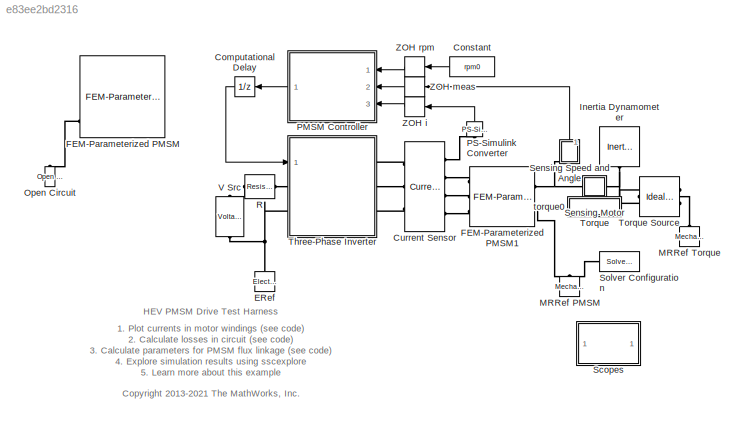
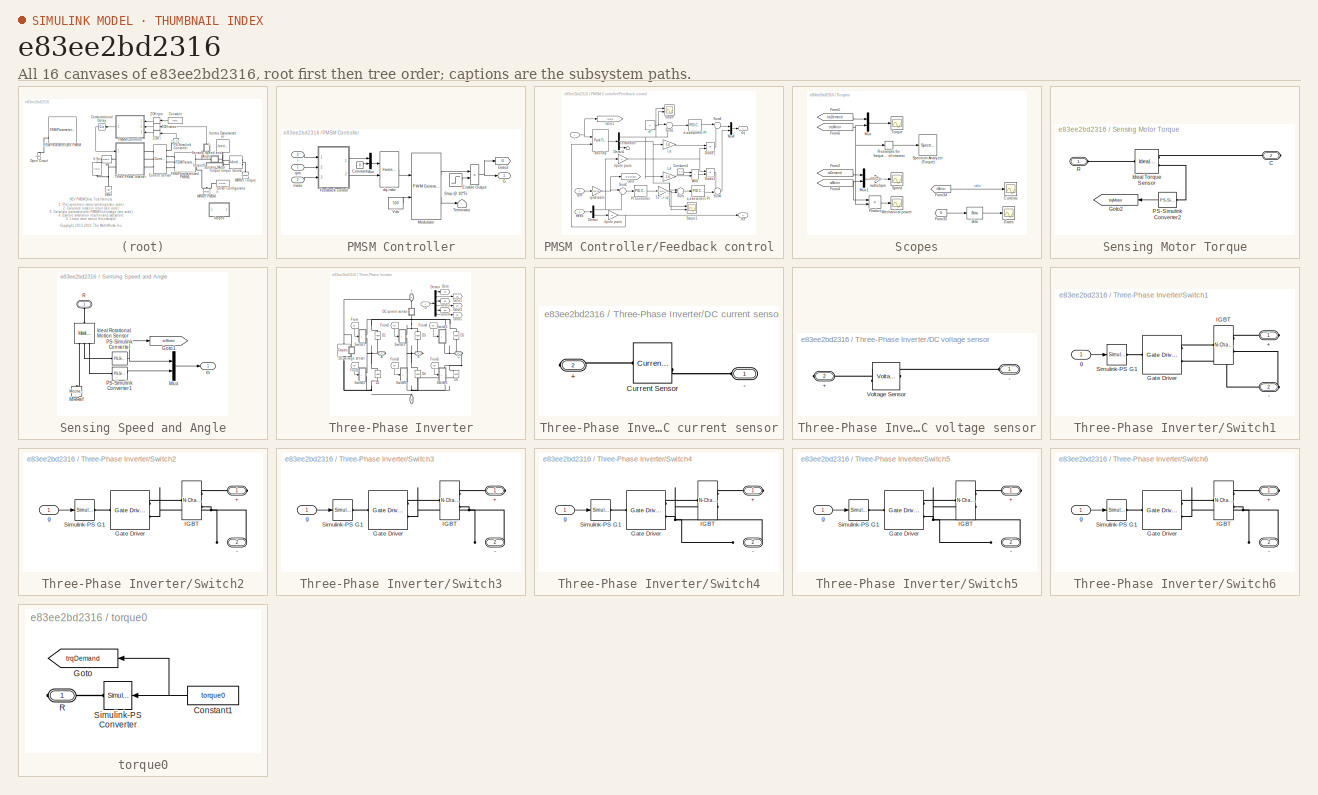
[diagram: thumbnail index - all 16 canvases of the model, root first then tree order]
MODEL slx_e83ee2bd2316
KIND model
CONFIG AbsTol = 1e-3
CONFIG EnableMultiTasking = on
CONFIG FixedStep = auto
CONFIG InitFcn = % Set simulation time for 5 full AC cycles\n% tsim = 5*60/rpm0/N;\ntsim = 4*60/rpm0/N;\n\n
CONFIG MaxStep = 1e-6
CONFIG MinStep = auto
CONFIG PostLoadFcn = % Create the PMSM data\nee_motor_pmsm_drive_test_params\n\n% Test harness test point\nrpm0 = 1400;\ntorque0 = 200;\n\n\n\n\n
CONFIG PreLoadFcn = tsim = 0.5;
CONFIG RelTol = 1e-4
CONFIG SampleTimeConstraint = Unconstrained
CONFIG SolverName = ode23t
CONFIG StartTime = 0.0
CONFIG StopFcn = ee_addSimlogTimeStamp(bdroot)
CONFIG StopTime = 1
BLOCK [UnitDelay] Computational Delay
  HasFrameUpgradeWarning = on
  NameLocation = top
  SampleTime = Ts
BLOCK [Constant] Constant
  NameLocation = top
  Value = rpm0
BLOCK [Reference] Current Sensor  REF=ee_lib/Sensors &
Transducers/Current Sensor
(Three-Phase)
  Ports = [0, 0, 0, 0, 0, 3, 4]
  SourceBlock = ee_lib/Sensors &\nTransducers/Current Sensor\n(Three-Phase)
  SourceProductBaseCode = PS
  SourceType = Current Sensor\n(Three-Phase)
BLOCK [Reference] ERef  REF=fl_lib/Electrical/Electrical Elements/Electrical Reference
  NameLocation = right
  Ports = [0, 0, 0, 0, 0, 1]
  SourceBlock = fl_lib/Electrical/Electrical Elements/Electrical Reference
  SourceProductBaseCode = SS
  SourceType = Electrical Reference
BLOCK [Reference] FEM-Parameterized PMSM  REF=ee_lib/Electromechanical/Permanent Magnet/FEM-Parameterized
PMSM
  Commented = on
  Ports = [0, 0, 0, 0, 0, 4, 2]
  SourceBlock = ee_lib/Electromechanical/Permanent Magnet/FEM-Parameterized\nPMSM
  SourceProductBaseCode = PS
  SourceType = FEM-Parameterized\nPMSM
BLOCK [Reference] FEM-Parameterized PMSM1  REF=ee_lib/Electromechanical/Permanent Magnet/FEM-Parameterized
PMSM
  Ports = [0, 0, 0, 0, 0, 3, 2]
  SourceBlock = ee_lib/Electromechanical/Permanent Magnet/FEM-Parameterized\nPMSM
  SourceProductBaseCode = PS
  SourceType = FEM-Parameterized\nPMSM
BLOCK [Reference] Inertia Dynamometer  REF=fl_lib/Mechanical/Rotational Elements/Inertia
  NameLocation = right
  Ports = [0, 0, 0, 0, 0, 1]
  SourceBlock = fl_lib/Mechanical/Rotational Elements/Inertia
  SourceProductBaseCode = SS
  SourceType = Inertia
BLOCK [Reference] MRRef PMSM  REF=fl_lib/Mechanical/Rotational Elements/Mechanical
Rotational Reference
  NameLocation = left
  Ports = [0, 0, 0, 0, 0, 1]
  SourceBlock = fl_lib/Mechanical/Rotational Elements/Mechanical\nRotational Reference
  SourceProductBaseCode = SS
  SourceType = Mechanical\nRotational Reference
BLOCK [Reference] MRRef Torque  REF=fl_lib/Mechanical/Rotational Elements/Mechanical
Rotational Reference
  NameLocation = right
  Ports = [0, 0, 0, 0, 0, 1]
  SourceBlock = fl_lib/Mechanical/Rotational Elements/Mechanical\nRotational Reference
  SourceProductBaseCode = SS
  SourceType = Mechanical\nRotational Reference
BLOCK [Reference] Open Circuit  REF=fl_lib/Electrical/Electrical Elements/Open Circuit
  Commented = on
  NameLocation = right
  Ports = [0, 0, 0, 0, 0, 1]
  SourceBlock = fl_lib/Electrical/Electrical Elements/Open Circuit
  SourceProductBaseCode = SS
  SourceType = Open Circuit
BLOCK [SubSystem] PMSM Controller
  NameLocation = top
  Ports = [3, 1]
  RequestExecContextInheritance = off
BLOCK [Constant] PMSM Controller/Constant
  SampleTime = -1
  Value = 0
BLOCK [Product] PMSM Controller/Enable Output
  Ports = [2, 1]
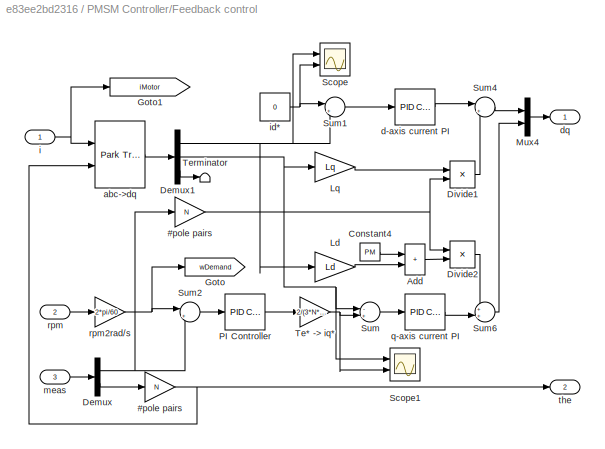
BLOCK [SubSystem] PMSM Controller/Feedback control
  Ports = [3, 2]
  RequestExecContextInheritance = off
BLOCK [Gain] PMSM Controller/Feedback control/ #pole pairs 
  Gain = N
BLOCK [Gain] PMSM Controller/Feedback control/#pole pairs
  Gain = N
BLOCK [Sum] PMSM Controller/Feedback control/Add
  IconShape = rectangular
  Ports = [2, 1]
BLOCK [Constant] PMSM Controller/Feedback control/Constant4
  SampleTime = Tsc
  Value = PM
BLOCK [Demux] PMSM Controller/Feedback control/Demux
  Outputs = 2
  Ports = [1, 2]
BLOCK [Demux] PMSM Controller/Feedback control/Demux1
  Outputs = 3
  Ports = [1, 3]
BLOCK [Product] PMSM Controller/Feedback control/Divide1
  Inputs = **
  Ports = [2, 1]
BLOCK [Product] PMSM Controller/Feedback control/Divide2
  Inputs = **
  Ports = [2, 1]
BLOCK [Goto] PMSM Controller/Feedback control/Goto
  GotoTag = wDemand
  NameLocation = top
  TagVisibility = global
BLOCK [Goto] PMSM Controller/Feedback control/Goto1
  GotoTag = iMotor
  NameLocation = top
  TagVisibility = global
BLOCK [Gain] PMSM Controller/Feedback control/Ld
  Gain = Ld
BLOCK [Gain] PMSM Controller/Feedback control/Lq
  Gain = Lq
BLOCK [Mux] PMSM Controller/Feedback control/Mux4
  DisplayOption = bar
  Inputs = 2
  Ports = [2, 1]
BLOCK [Reference] PMSM Controller/Feedback control/PI Controller  REF=slpidlib/PID Controller
  Ports = [1, 1]
  SourceBlock = slpidlib/PID Controller
  SourceProductBaseCode = SL
  SourceType = PID 1dof
BLOCK [Scope] PMSM Controller/Feedback control/Scope
  Floating = off
  NumInputPorts = 2
  Ports = [2]
  ScopeSpecificationString = Simulink.scopes.TimeScopeBlockCfg('CurrentConfiguration', extmgr.ConfigurationSet(extmgr.Configuration('Core','General UI',true),extmgr.Configuration('Core','Source UI',true),extmgr.Configuration('Sources','WiredSimulink',true,'DataLoggingVariableName','ScopeData1'),extmgr.Configuration('Visuals','Time Domain',true,'SerializedDisplays',{struct('MinYLimReal','-178.62259','MaxYLimReal','517.60003','...<+1526ch>
BLOCK [Scope] PMSM Controller/Feedback control/Scope1
  Floating = off
  NumInputPorts = 2
  Ports = [2]
  ScopeSpecificationString = Simulink.scopes.TimeScopeBlockCfg('CurrentConfiguration', extmgr.ConfigurationSet(extmgr.Configuration('Core','General UI',true),extmgr.Configuration('Core','Source UI',true),extmgr.Configuration('Sources','WiredSimulink',true,'DataLoggingVariableName','ScopeData2'),extmgr.Configuration('Visuals','Time Domain',true,'SerializedDisplays',{struct('MinYLimReal','-698.6642','MaxYLimReal','98.2496','YLa...<+1524ch>
BLOCK [Sum] PMSM Controller/Feedback control/Sum
  Inputs = -+|
  Ports = [2, 1]
BLOCK [Sum] PMSM Controller/Feedback control/Sum1
  Inputs = |+-
  Ports = [2, 1]
BLOCK [Sum] PMSM Controller/Feedback control/Sum2
  Inputs = |+-
  Ports = [2, 1]
BLOCK [Sum] PMSM Controller/Feedback control/Sum4
  Inputs = |+-
  Ports = [2, 1]
BLOCK [Sum] PMSM Controller/Feedback control/Sum6
  Inputs = ++|
  Ports = [2, 1]
BLOCK [Gain] PMSM Controller/Feedback control/Te* -> iq*
  Gain = 2/(3*N*PM)
BLOCK [Terminator] PMSM Controller/Feedback control/Terminator
BLOCK [Reference] PMSM Controller/Feedback control/abc->dq  REF=eeTransforms/Park Transform
  Ports = [2, 1]
  SourceBlock = eeTransforms/Park Transform
  SourceProductBaseCode = PS
  SourceType = Park Transform
BLOCK [Reference] PMSM Controller/Feedback control/d-axis current PI  REF=slpidlib/PID Controller
  Ports = [1, 1]
  SourceBlock = slpidlib/PID Controller
  SourceProductBaseCode = SL
  SourceType = PID 1dof
BLOCK [Outport] PMSM Controller/Feedback control/dq
  VectorParamsAs1DForOutWhenUnconnected = off
BLOCK [Inport] PMSM Controller/Feedback control/i
BLOCK [Constant] PMSM Controller/Feedback control/id*
  SampleTime = Tsc
  Value = 0
BLOCK [Inport] PMSM Controller/Feedback control/meas
  Port = 3
BLOCK [Reference] PMSM Controller/Feedback control/q-axis current PI  REF=slpidlib/PID Controller
  Ports = [1, 1]
  SourceBlock = slpidlib/PID Controller
  SourceProductBaseCode = SL
  SourceType = PID 1dof
BLOCK [Inport] PMSM Controller/Feedback control/rpm
  Port = 2
BLOCK [Gain] PMSM Controller/Feedback control/rpm2rad//s
  Gain = 2*pi/60
BLOCK [Outport] PMSM Controller/Feedback control/the
  Port = 2
  VectorParamsAs1DForOutWhenUnconnected = off
BLOCK [Outport] PMSM Controller/G
  VectorParamsAs1DForOutWhenUnconnected = off
BLOCK [Goto] PMSM Controller/Goto3
  GotoTag = G
  NameLocation = top
  TagVisibility = global
BLOCK [Reference] PMSM Controller/Modulator  REF=eePwmGeneratorTwoLevel/PWM Generator
(Three-phase, Two-level)
  Ports = [2, 2]
  SourceBlock = eePwmGeneratorTwoLevel/PWM Generator\n(Three-phase, Two-level)
  SourceProductBaseCode = PS
  SourceType = PWM Generator (three-phase, two-level)
BLOCK [Mux] PMSM Controller/Mux
  DisplayOption = bar
  Inputs = 2
  Ports = [2, 1]
BLOCK [Step] PMSM Controller/Step @ 10*Ts
  SampleTime = Ts
  Time = 10*Ts
BLOCK [Terminator] PMSM Controller/Terminator
BLOCK [Constant] PMSM Controller/Vdc
  SampleTime = Tsc
  Value = 500
BLOCK [Reference] PMSM Controller/dq->abc  REF=eeTransforms/Inverse
Park Transform
  Ports = [2, 1]
  SourceBlock = eeTransforms/Inverse\nPark Transform
  SourceProductBaseCode = PS
  SourceType = Inverse Park Transform
BLOCK [Inport] PMSM Controller/i
  Port = 3
BLOCK [Inport] PMSM Controller/meas
  Port = 2
BLOCK [Inport] PMSM Controller/rpm
BLOCK [Reference] PS-Simulink Converter  REF=nesl_utility/PS-Simulink
Converter
  NameLocation = right
  Ports = [0, 1, 0, 0, 0, 1]
  SourceBlock = nesl_utility/PS-Simulink\nConverter
  SourceProductBaseCode = PW,SS
  SourceType = PS-Simulink\nConverter
BLOCK [Reference] R  REF=fl_lib/Electrical/Electrical Elements/Resistor
  Ports = [0, 0, 0, 0, 0, 1, 1]
  SourceBlock = fl_lib/Electrical/Electrical Elements/Resistor
  SourceProductBaseCode = SS
  SourceType = Resistor
BLOCK [SubSystem] Scopes
  Ports = []
  RequestExecContextInheritance = off
BLOCK [Bias] Scopes/Bias
  Bias = [0 0 2 2 4 4]
  SaturateOnIntegerOverflow = off
BLOCK [Scope] Scopes/Currents
  Floating = off
  NumInputPorts = 1
  Ports = [1]
  ScopeSpecificationString = Simulink.scopes.TimeScopeBlockCfg('CurrentConfiguration', extmgr.ConfigurationSet(extmgr.Configuration('Core','General UI',true),extmgr.Configuration('Core','Source UI',true),extmgr.Configuration('Sources','WiredSimulink',true,'DataLoggingVariableName','ScopeData5','DataLoggingSaveFormat','StructureWithTime','DataLoggingMaxPoints','50000','DataLoggingDecimation','10','DataLoggingLimitDataPoints',t...<+1786ch>
BLOCK [From] Scopes/From2
  GotoTag = wDemand
  TagVisibility = global
BLOCK [From] Scopes/From34
  GotoTag = iMotor
  TagVisibility = global
BLOCK [From] Scopes/From35
  GotoTag = G
  TagVisibility = global
BLOCK [From] Scopes/From4
  GotoTag = wMotor
  TagVisibility = global
BLOCK [From] Scopes/From5
  GotoTag = trqDemand
  TagVisibility = global
BLOCK [From] Scopes/From6
  GotoTag = trqMotor
  TagVisibility = global
BLOCK [Scope] Scopes/Gates
  Floating = off
  NumInputPorts = 1
  Ports = [1]
  ScopeSpecificationString = Simulink.scopes.TimeScopeBlockCfg('CurrentConfiguration', extmgr.ConfigurationSet(extmgr.Configuration('Core','General UI',true),extmgr.Configuration('Core','Source UI',true),extmgr.Configuration('Sources','WiredSimulink',true,'DataLoggingVariableName','ScopeData4','DataLoggingSaveFormat','StructureWithTime','DataLoggingMaxPoints','50000','DataLoggingDecimation','10','DataLoggingLimitDataPoints',t...<+1809ch>
BLOCK [Scope] Scopes/Mechanical power
  Floating = off
  NumInputPorts = 1
  Ports = [1]
  ScopeSpecificationString = Simulink.scopes.TimeScopeBlockCfg('CurrentConfiguration', extmgr.ConfigurationSet(extmgr.Configuration('Core','General UI',true),extmgr.Configuration('Core','Source UI',true),extmgr.Configuration('Sources','WiredSimulink',true,'DataLoggingVariableName','ScopeData1','DataLoggingSaveFormat','StructureWithTime','DataLoggingMaxPoints','500000','DataLoggingDecimation','10','DataLoggingLimitDataPoints',...<+1754ch>
BLOCK [Mux] Scopes/Mux
  DisplayOption = bar
  Inputs = 2
  Ports = [2, 1]
BLOCK [Mux] Scopes/Mux1
  DisplayOption = bar
  Inputs = 2
  Ports = [2, 1]
BLOCK [Product] Scopes/Product
  Ports = [2, 1]
BLOCK [ZeroOrderHold] Scopes/Resample for frequency range of interest
  SampleTime = 2.5e-5
BLOCK [SpectrumAnalyzer] Scopes/Spectrum Analyzer (Torque)
  Ports = [1]
  ScopeSpecificationString = spbscopes.SpectrumAnalyzerBlockCfg('CurrentConfiguration', extmgr.ConfigurationSet(extmgr.Configuration('Core','General UI',true),extmgr.Configuration('Core','Source UI',true),extmgr.Configuration('Sources','WiredSimulink',true),extmgr.Configuration('Sources','Simulink',false),extmgr.Configuration('Sources','SimulinkEvent',false),extmgr.Configuration('Sources','Streaming',false),extmgr.Configurati...<+3148ch>
  Tag = PublishScope
BLOCK [Scope] Scopes/Speed
  Floating = off
  NumInputPorts = 1
  Ports = [1]
  ScopeSpecificationString = Simulink.scopes.TimeScopeBlockCfg('CurrentConfiguration', extmgr.ConfigurationSet(extmgr.Configuration('Core','General UI',true),extmgr.Configuration('Core','Source UI',true),extmgr.Configuration('Sources','WiredSimulink',true,'DataLoggingVariableName','ScopeData6','DataLoggingSaveFormat','StructureWithTime','DataLoggingMaxPoints','500000','DataLoggingDecimation','10','DataLoggingLimitDataPoints',...<+1873ch>
BLOCK [Scope] Scopes/Torque
  Floating = off
  NumInputPorts = 1
  Ports = [1]
  ScopeSpecificationString = Simulink.scopes.TimeScopeBlockCfg('CurrentConfiguration', extmgr.ConfigurationSet(extmgr.Configuration('Core','General UI',true),extmgr.Configuration('Core','Source UI',true),extmgr.Configuration('Sources','WiredSimulink',true,'DataLoggingVariableName','ScopeData7','DataLoggingSaveFormat','StructureWithTime','DataLoggingMaxPoints','500000','DataLoggingDecimation','10','DataLoggingLimitDataPoints',...<+1772ch>
BLOCK [Gain] Scopes/rad//s2rpm
  Gain = 60/(2*pi)
BLOCK [SubSystem] Sensing Motor Torque
  Ports = [0, 0, 0, 0, 0, 1, 1]
  RequestExecContextInheritance = off
BLOCK [PMIOPort] Sensing Motor Torque/C
  Port = 2
  Side = Right
BLOCK [Goto] Sensing Motor Torque/Goto2
  GotoTag = trqMotor
  TagVisibility = global
BLOCK [Reference] Sensing Motor Torque/Ideal Torque Sensor  REF=fl_lib/Mechanical/Mechanical Sensors/Ideal Torque Sensor
  Ports = [0, 0, 0, 0, 0, 1, 2]
  SourceBlock = fl_lib/Mechanical/Mechanical Sensors/Ideal Torque Sensor
  SourceProductBaseCode = SS
  SourceType = Ideal Torque Sensor
BLOCK [Reference] Sensing Motor Torque/PS-Simulink Converter2  REF=nesl_utility/PS-Simulink
Converter
  NameLocation = top
  Ports = [0, 1, 0, 0, 0, 1]
  SourceBlock = nesl_utility/PS-Simulink\nConverter
  SourceProductBaseCode = PW,SS
  SourceType = PS-Simulink\nConverter
BLOCK [PMIOPort] Sensing Motor Torque/R
  Side = Left
BLOCK [SubSystem] Sensing Speed and Angle
  NameLocation = right
  Ports = [0, 1, 0, 0, 0, 1]
  RequestExecContextInheritance = off
BLOCK [Goto] Sensing Speed and Angle/Goto1
  GotoTag = wMotor
  NameLocation = top
  TagVisibility = global
BLOCK [Reference] Sensing Speed and Angle/Ideal Rotational Motion Sensor  REF=fl_lib/Mechanical/Mechanical Sensors/Ideal Rotational
Motion Sensor
  NameLocation = right
  Ports = [0, 0, 0, 0, 0, 1, 3]
  SourceBlock = fl_lib/Mechanical/Mechanical Sensors/Ideal Rotational\nMotion Sensor
  SourceProductBaseCode = SS
  SourceType = Ideal Rotational\nMotion Sensor
BLOCK [Reference] Sensing Speed and Angle/MRRef  REF=fl_lib/Mechanical/Rotational Elements/Mechanical
Rotational Reference
  NameLocation = right
  Ports = [0, 0, 0, 0, 0, 1]
  SourceBlock = fl_lib/Mechanical/Rotational Elements/Mechanical\nRotational Reference
  SourceProductBaseCode = SS
  SourceType = Mechanical\nRotational Reference
BLOCK [Mux] Sensing Speed and Angle/Mux
  DisplayOption = bar
  Inputs = 2
  Ports = [2, 1]
BLOCK [Reference] Sensing Speed and Angle/PS-Simulink Converter  REF=nesl_utility/PS-Simulink
Converter
  Ports = [0, 1, 0, 0, 0, 1]
  SourceBlock = nesl_utility/PS-Simulink\nConverter
  SourceProductBaseCode = PW,SS
  SourceType = PS-Simulink\nConverter
BLOCK [Reference] Sensing Speed and Angle/PS-Simulink Converter1  REF=nesl_utility/PS-Simulink
Converter
  Ports = [0, 1, 0, 0, 0, 1]
  SourceBlock = nesl_utility/PS-Simulink\nConverter
  SourceProductBaseCode = PW,SS
  SourceType = PS-Simulink\nConverter
BLOCK [PMIOPort] Sensing Speed and Angle/R
  NameLocation = right
  Side = Left
BLOCK [Outport] Sensing Speed and Angle/m
  VectorParamsAs1DForOutWhenUnconnected = off
BLOCK [Reference] Solver Configuration  REF=nesl_utility/Solver
Configuration
  Ports = [0, 0, 0, 0, 0, 0, 1]
  SourceBlock = nesl_utility/Solver\nConfiguration
  SourceProductBaseCode = PW,SS
  SourceType = Solver\nConfiguration
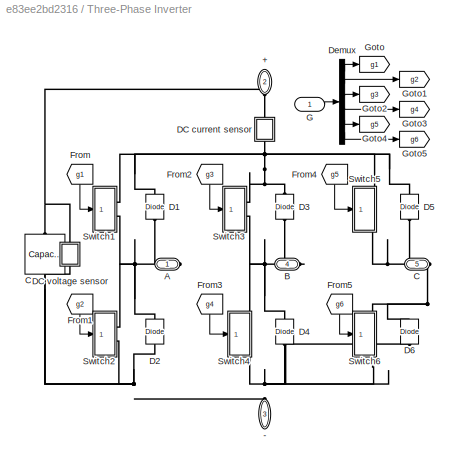
BLOCK [SubSystem] Three-Phase Inverter
  Ports = [1, 0, 0, 0, 0, 2, 3]
  RequestExecContextInheritance = off
  Tag = PublishSubsystem
BLOCK [Reference] Three-Phase Inverter/ C  REF=ee_lib/Passive/Capacitor
  NameLocation = left
  Ports = [0, 0, 0, 0, 0, 1, 1]
  SourceBlock = ee_lib/Passive/Capacitor
  SourceProductBaseCode = PS
  SourceType = Capacitor
BLOCK [PMIOPort] Three-Phase Inverter/+
  NameLocation = left
  Port = 2
  Side = Left
  Tag = PMCPort
BLOCK [PMIOPort] Three-Phase Inverter/-
  NameLocation = right
  Port = 3
  Side = Left
  Tag = PMCPort
BLOCK [PMIOPort] Three-Phase Inverter/A
  Side = Right
  Tag = PMCPort
BLOCK [PMIOPort] Three-Phase Inverter/B
  Port = 4
  Side = Right
  Tag = PMCPort
BLOCK [PMIOPort] Three-Phase Inverter/C
  Port = 5
  Side = Right
  Tag = PMCPort
BLOCK [Reference] Three-Phase Inverter/D1  REF=ee_lib/Semiconductors &
Converters/Diode
  NameLocation = right
  Ports = [0, 0, 0, 0, 0, 1, 1]
  SourceBlock = ee_lib/Semiconductors &\nConverters/Diode
  SourceProductBaseCode = PS
  SourceType = Diode
BLOCK [Reference] Three-Phase Inverter/D2  REF=ee_lib/Semiconductors &
Converters/Diode
  NameLocation = right
  Ports = [0, 0, 0, 0, 0, 1, 1]
  SourceBlock = ee_lib/Semiconductors &\nConverters/Diode
  SourceProductBaseCode = PS
  SourceType = Diode
BLOCK [Reference] Three-Phase Inverter/D3  REF=ee_lib/Semiconductors &
Converters/Diode
  NameLocation = right
  Ports = [0, 0, 0, 0, 0, 1, 1]
  SourceBlock = ee_lib/Semiconductors &\nConverters/Diode
  SourceProductBaseCode = PS
  SourceType = Diode
BLOCK [Reference] Three-Phase Inverter/D4  REF=ee_lib/Semiconductors &
Converters/Diode
  NameLocation = right
  Ports = [0, 0, 0, 0, 0, 1, 1]
  SourceBlock = ee_lib/Semiconductors &\nConverters/Diode
  SourceProductBaseCode = PS
  SourceType = Diode
BLOCK [Reference] Three-Phase Inverter/D5  REF=ee_lib/Semiconductors &
Converters/Diode
  NameLocation = right
  Ports = [0, 0, 0, 0, 0, 1, 1]
  SourceBlock = ee_lib/Semiconductors &\nConverters/Diode
  SourceProductBaseCode = PS
  SourceType = Diode
BLOCK [Reference] Three-Phase Inverter/D6  REF=ee_lib/Semiconductors &
Converters/Diode
  NameLocation = right
  Ports = [0, 0, 0, 0, 0, 1, 1]
  SourceBlock = ee_lib/Semiconductors &\nConverters/Diode
  SourceProductBaseCode = PS
  SourceType = Diode
BLOCK [SubSystem] Three-Phase Inverter/DC current sensor
  NameLocation = left
  Ports = [0, 0, 0, 0, 0, 1, 1]
  RequestExecContextInheritance = off
BLOCK [PMIOPort] Three-Phase Inverter/DC current sensor/+
  Port = 2
  Side = Right
BLOCK [PMIOPort] Three-Phase Inverter/DC current sensor/-
  Side = Left
BLOCK [Reference] Three-Phase Inverter/DC current sensor/Current Sensor  REF=fl_lib/Electrical/Electrical Sensors/Current Sensor
  Ports = [0, 0, 0, 0, 0, 1, 2]
  SourceBlock = fl_lib/Electrical/Electrical Sensors/Current Sensor
  SourceProductBaseCode = SS
  SourceType = Current Sensor
BLOCK [SubSystem] Three-Phase Inverter/DC voltage sensor
  NameLocation = right
  Ports = [0, 0, 0, 0, 0, 1, 1]
  RequestExecContextInheritance = off
BLOCK [PMIOPort] Three-Phase Inverter/DC voltage sensor/+
  Port = 2
  Side = Right
BLOCK [PMIOPort] Three-Phase Inverter/DC voltage sensor/-
  Side = Left
BLOCK [Reference] Three-Phase Inverter/DC voltage sensor/Voltage Sensor  REF=fl_lib/Electrical/Electrical Sensors/Voltage Sensor
  Ports = [0, 0, 0, 0, 0, 1, 2]
  SourceBlock = fl_lib/Electrical/Electrical Sensors/Voltage Sensor
  SourceProductBaseCode = SS
  SourceType = Voltage Sensor
BLOCK [Demux] Three-Phase Inverter/Demux
  Outputs = 6
  Ports = [1, 6]
BLOCK [From] Three-Phase Inverter/From
  GotoTag = g1
  NameLocation = left
BLOCK [From] Three-Phase Inverter/From1
  GotoTag = g2
  NameLocation = left
BLOCK [From] Three-Phase Inverter/From2
  GotoTag = g3
  NameLocation = left
BLOCK [From] Three-Phase Inverter/From3
  GotoTag = g4
  NameLocation = left
BLOCK [From] Three-Phase Inverter/From4
  GotoTag = g5
  NameLocation = left
BLOCK [From] Three-Phase Inverter/From5
  GotoTag = g6
  NameLocation = left
BLOCK [Inport] Three-Phase Inverter/G
BLOCK [Goto] Three-Phase Inverter/Goto
  GotoTag = g1
BLOCK [Goto] Three-Phase Inverter/Goto1
  GotoTag = g2
BLOCK [Goto] Three-Phase Inverter/Goto2
  GotoTag = g3
BLOCK [Goto] Three-Phase Inverter/Goto3
  GotoTag = g4
BLOCK [Goto] Three-Phase Inverter/Goto4
  GotoTag = g5
BLOCK [Goto] Three-Phase Inverter/Goto5
  GotoTag = g6
BLOCK [SubSystem] Three-Phase Inverter/Switch1
  Ports = [1, 0, 0, 0, 0, 0, 2]
  RequestExecContextInheritance = off
BLOCK [PMIOPort] Three-Phase Inverter/Switch1/+
  Side = Right
BLOCK [PMIOPort] Three-Phase Inverter/Switch1/-
  Port = 2
  Side = Right
BLOCK [Reference] Three-Phase Inverter/Switch1/Gate Driver  REF=ee_lib/Semiconductors &
Converters/Gate Driver
  Ports = [0, 0, 0, 0, 0, 1, 2]
  SourceBlock = ee_lib/Semiconductors &\nConverters/Gate Driver
  SourceProductBaseCode = PS
  SourceType = Gate Driver
BLOCK [Reference] Three-Phase Inverter/Switch1/IGBT  REF=ee_lib/Semiconductors &
Converters/N-Channel IGBT
  Ports = [0, 0, 0, 0, 0, 1, 2]
  SourceBlock = ee_lib/Semiconductors &\nConverters/N-Channel IGBT
  SourceProductBaseCode = PS
  SourceType = N-Channel IGBT
BLOCK [Reference] Three-Phase Inverter/Switch1/Simulink-PS G1  REF=nesl_utility/Simulink-PS
Converter
  Ports = [1, 0, 0, 0, 0, 0, 1]
  SourceBlock = nesl_utility/Simulink-PS\nConverter
  SourceProductBaseCode = PW,SS
  SourceType = Simulink-PS\nConverter
BLOCK [Inport] Three-Phase Inverter/Switch1/g
BLOCK [SubSystem] Three-Phase Inverter/Switch2
  Ports = [1, 0, 0, 0, 0, 0, 2]
  RequestExecContextInheritance = off
BLOCK [PMIOPort] Three-Phase Inverter/Switch2/+
  Side = Right
BLOCK [PMIOPort] Three-Phase Inverter/Switch2/-
  Port = 2
  Side = Right
BLOCK [Reference] Three-Phase Inverter/Switch2/Gate Driver  REF=ee_lib/Semiconductors &
Converters/Gate Driver
  Ports = [0, 0, 0, 0, 0, 1, 2]
  SourceBlock = ee_lib/Semiconductors &\nConverters/Gate Driver
  SourceProductBaseCode = PS
  SourceType = Gate Driver
BLOCK [Reference] Three-Phase Inverter/Switch2/IGBT  REF=ee_lib/Semiconductors &
Converters/N-Channel IGBT
  Ports = [0, 0, 0, 0, 0, 1, 2]
  SourceBlock = ee_lib/Semiconductors &\nConverters/N-Channel IGBT
  SourceProductBaseCode = PS
  SourceType = N-Channel IGBT
BLOCK [Reference] Three-Phase Inverter/Switch2/Simulink-PS G1  REF=nesl_utility/Simulink-PS
Converter
  Ports = [1, 0, 0, 0, 0, 0, 1]
  SourceBlock = nesl_utility/Simulink-PS\nConverter
  SourceProductBaseCode = PW,SS
  SourceType = Simulink-PS\nConverter
BLOCK [Inport] Three-Phase Inverter/Switch2/g
BLOCK [SubSystem] Three-Phase Inverter/Switch3
  Ports = [1, 0, 0, 0, 0, 0, 2]
  RequestExecContextInheritance = off
BLOCK [PMIOPort] Three-Phase Inverter/Switch3/+
  Side = Right
BLOCK [PMIOPort] Three-Phase Inverter/Switch3/-
  Port = 2
  Side = Right
BLOCK [Reference] Three-Phase Inverter/Switch3/Gate Driver  REF=ee_lib/Semiconductors &
Converters/Gate Driver
  Ports = [0, 0, 0, 0, 0, 1, 2]
  SourceBlock = ee_lib/Semiconductors &\nConverters/Gate Driver
  SourceProductBaseCode = PS
  SourceType = Gate Driver
BLOCK [Reference] Three-Phase Inverter/Switch3/IGBT  REF=ee_lib/Semiconductors &
Converters/N-Channel IGBT
  Ports = [0, 0, 0, 0, 0, 1, 2]
  SourceBlock = ee_lib/Semiconductors &\nConverters/N-Channel IGBT
  SourceProductBaseCode = PS
  SourceType = N-Channel IGBT
BLOCK [Reference] Three-Phase Inverter/Switch3/Simulink-PS G1  REF=nesl_utility/Simulink-PS
Converter
  Ports = [1, 0, 0, 0, 0, 0, 1]
  SourceBlock = nesl_utility/Simulink-PS\nConverter
  SourceProductBaseCode = PW,SS
  SourceType = Simulink-PS\nConverter
BLOCK [Inport] Three-Phase Inverter/Switch3/g
BLOCK [SubSystem] Three-Phase Inverter/Switch4
  Ports = [1, 0, 0, 0, 0, 0, 2]
  RequestExecContextInheritance = off
BLOCK [PMIOPort] Three-Phase Inverter/Switch4/+
  Side = Right
BLOCK [PMIOPort] Three-Phase Inverter/Switch4/-
  Port = 2
  Side = Right
BLOCK [Reference] Three-Phase Inverter/Switch4/Gate Driver  REF=ee_lib/Semiconductors &
Converters/Gate Driver
  Ports = [0, 0, 0, 0, 0, 1, 2]
  SourceBlock = ee_lib/Semiconductors &\nConverters/Gate Driver
  SourceProductBaseCode = PS
  SourceType = Gate Driver
BLOCK [Reference] Three-Phase Inverter/Switch4/IGBT  REF=ee_lib/Semiconductors &
Converters/N-Channel IGBT
  Ports = [0, 0, 0, 0, 0, 1, 2]
  SourceBlock = ee_lib/Semiconductors &\nConverters/N-Channel IGBT
  SourceProductBaseCode = PS
  SourceType = N-Channel IGBT
BLOCK [Reference] Three-Phase Inverter/Switch4/Simulink-PS G1  REF=nesl_utility/Simulink-PS
Converter
  Ports = [1, 0, 0, 0, 0, 0, 1]
  SourceBlock = nesl_utility/Simulink-PS\nConverter
  SourceProductBaseCode = PW,SS
  SourceType = Simulink-PS\nConverter
BLOCK [Inport] Three-Phase Inverter/Switch4/g
BLOCK [SubSystem] Three-Phase Inverter/Switch5
  Ports = [1, 0, 0, 0, 0, 0, 2]
  RequestExecContextInheritance = off
BLOCK [PMIOPort] Three-Phase Inverter/Switch5/+
  Side = Right
BLOCK [PMIOPort] Three-Phase Inverter/Switch5/-
  Port = 2
  Side = Right
BLOCK [Reference] Three-Phase Inverter/Switch5/Gate Driver  REF=ee_lib/Semiconductors &
Converters/Gate Driver
  Ports = [0, 0, 0, 0, 0, 1, 2]
  SourceBlock = ee_lib/Semiconductors &\nConverters/Gate Driver
  SourceProductBaseCode = PS
  SourceType = Gate Driver
BLOCK [Reference] Three-Phase Inverter/Switch5/IGBT  REF=ee_lib/Semiconductors &
Converters/N-Channel IGBT
  Ports = [0, 0, 0, 0, 0, 1, 2]
  SourceBlock = ee_lib/Semiconductors &\nConverters/N-Channel IGBT
  SourceProductBaseCode = PS
  SourceType = N-Channel IGBT
BLOCK [Reference] Three-Phase Inverter/Switch5/Simulink-PS G1  REF=nesl_utility/Simulink-PS
Converter
  Ports = [1, 0, 0, 0, 0, 0, 1]
  SourceBlock = nesl_utility/Simulink-PS\nConverter
  SourceProductBaseCode = PW,SS
  SourceType = Simulink-PS\nConverter
BLOCK [Inport] Three-Phase Inverter/Switch5/g
BLOCK [SubSystem] Three-Phase Inverter/Switch6
  Ports = [1, 0, 0, 0, 0, 0, 2]
  RequestExecContextInheritance = off
BLOCK [PMIOPort] Three-Phase Inverter/Switch6/+
  Side = Right
BLOCK [PMIOPort] Three-Phase Inverter/Switch6/-
  Port = 2
  Side = Right
BLOCK [Reference] Three-Phase Inverter/Switch6/Gate Driver  REF=ee_lib/Semiconductors &
Converters/Gate Driver
  Ports = [0, 0, 0, 0, 0, 1, 2]
  SourceBlock = ee_lib/Semiconductors &\nConverters/Gate Driver
  SourceProductBaseCode = PS
  SourceType = Gate Driver
BLOCK [Reference] Three-Phase Inverter/Switch6/IGBT  REF=ee_lib/Semiconductors &
Converters/N-Channel IGBT
  Ports = [0, 0, 0, 0, 0, 1, 2]
  SourceBlock = ee_lib/Semiconductors &\nConverters/N-Channel IGBT
  SourceProductBaseCode = PS
  SourceType = N-Channel IGBT
BLOCK [Reference] Three-Phase Inverter/Switch6/Simulink-PS G1  REF=nesl_utility/Simulink-PS
Converter
  Ports = [1, 0, 0, 0, 0, 0, 1]
  SourceBlock = nesl_utility/Simulink-PS\nConverter
  SourceProductBaseCode = PW,SS
  SourceType = Simulink-PS\nConverter
BLOCK [Inport] Three-Phase Inverter/Switch6/g
BLOCK [Reference] Torque Source  REF=fl_lib/Mechanical/Mechanical Sources/Ideal Torque Source
  NameLocation = top
  Ports = [0, 0, 0, 0, 0, 1, 2]
  SourceBlock = fl_lib/Mechanical/Mechanical Sources/Ideal Torque Source
  SourceProductBaseCode = SS
  SourceType = Ideal Torque Source
BLOCK [Reference] V Src  REF=ee_lib/Sources/Voltage Source
  AttributesFormatString = %<dc_voltage> %<dc_voltage_unit>
  NameLocation = left
  Ports = [0, 0, 0, 0, 0, 1, 1]
  SourceBlock = ee_lib/Sources/Voltage Source
  SourceProductBaseCode = PS
  SourceType = Voltage Source
BLOCK [ZeroOrderHold] ZOH i
  SampleTime = Tsc
BLOCK [ZeroOrderHold] ZOH meas
  SampleTime = Tsc
BLOCK [ZeroOrderHold] ZOH rpm
  NameLocation = top
  SampleTime = Tsc
BLOCK [SubSystem] torque0
  NameLocation = top
  Ports = [0, 0, 0, 0, 0, 0, 1]
  RequestExecContextInheritance = off
BLOCK [Constant] torque0/Constant1
  NameLocation = top
  Value = torque0
BLOCK [Goto] torque0/Goto
  GotoTag = trqDemand
  NameLocation = top
  TagVisibility = global
BLOCK [PMIOPort] torque0/R
  Side = Right
BLOCK [Reference] torque0/Simulink-PS Converter  REF=nesl_utility/Simulink-PS
Converter
  Ports = [1, 0, 0, 0, 0, 0, 1]
  SourceBlock = nesl_utility/Simulink-PS\nConverter
  SourceProductBaseCode = PW,SS
  SourceType = Simulink-PS\nConverter
ANNOTATION (root): 1. Plot currents in motor windings ( see code ) 2. Calculate losses in circuit ( see code ) 3. Calculate parameters for PMSM flux linkage ( see code ) 4. Explore simulation results using sscexplore 5. Learn more about this example
ANNOTATION (root): <copyright redacted>
ANNOTATION (root): HEV PMSM Drive Test Harness
LINE Computational Delay:1 -> Three-Phase Inverter:1
LINE Constant:1 -> ZOH rpm:1
LINE PMSM Controller/Constant:1 -> PMSM Controller/Mux:2
NET PMSM Controller/Enable Output:1 -> PMSM Controller/G:1, PMSM Controller/Goto3:1
NET PMSM Controller/Feedback control/ #pole pairs :1 -> PMSM Controller/Feedback control/abc->dq:2, PMSM Controller/Feedback control/the:1
NET PMSM Controller/Feedback control/#pole pairs:1 -> PMSM Controller/Feedback control/Divide1:2, PMSM Controller/Feedback control/Divide2:1
LINE PMSM Controller/Feedback control/Add:1 -> PMSM Controller/Feedback control/Divide2:2
LINE PMSM Controller/Feedback control/Constant4:1 -> PMSM Controller/Feedback control/Add:1
NET PMSM Controller/Feedback control/Demux1:1 -> PMSM Controller/Feedback control/Ld:1, PMSM Controller/Feedback control/Scope:1, PMSM Controller/Feedback control/Sum1:2
NET PMSM Controller/Feedback control/Demux1:2 -> PMSM Controller/Feedback control/Lq:1, PMSM Controller/Feedback control/Scope1:1, PMSM Controller/Feedback control/Sum:1
LINE PMSM Controller/Feedback control/Demux1:3 -> PMSM Controller/Feedback control/Terminator:1
NET PMSM Controller/Feedback control/Demux:1 -> PMSM Controller/Feedback control/#pole pairs:1, PMSM Controller/Feedback control/Sum2:2
LINE PMSM Controller/Feedback control/Demux:2 -> PMSM Controller/Feedback control/ #pole pairs :1
LINE PMSM Controller/Feedback control/Divide1:1 -> PMSM Controller/Feedback control/Sum4:2
LINE PMSM Controller/Feedback control/Divide2:1 -> PMSM Controller/Feedback control/Sum6:1
LINE PMSM Controller/Feedback control/Ld:1 -> PMSM Controller/Feedback control/Add:2
LINE PMSM Controller/Feedback control/Lq:1 -> PMSM Controller/Feedback control/Divide1:1
LINE PMSM Controller/Feedback control/Mux4:1 -> PMSM Controller/Feedback control/dq:1
LINE PMSM Controller/Feedback control/PI Controller:1 -> PMSM Controller/Feedback control/Te* -> iq*:1
LINE PMSM Controller/Feedback control/Sum1:1 -> PMSM Controller/Feedback control/d-axis current PI:1
LINE PMSM Controller/Feedback control/Sum2:1 -> PMSM Controller/Feedback control/PI Controller:1
LINE PMSM Controller/Feedback control/Sum4:1 -> PMSM Controller/Feedback control/Mux4:1
LINE PMSM Controller/Feedback control/Sum6:1 -> PMSM Controller/Feedback control/Mux4:2
LINE PMSM Controller/Feedback control/Sum:1 -> PMSM Controller/Feedback control/q-axis current PI:1
NET PMSM Controller/Feedback control/Te* -> iq*:1 -> PMSM Controller/Feedback control/Scope1:2, PMSM Controller/Feedback control/Sum:2
LINE PMSM Controller/Feedback control/abc->dq:1 -> PMSM Controller/Feedback control/Demux1:1
LINE PMSM Controller/Feedback control/d-axis current PI:1 -> PMSM Controller/Feedback control/Sum4:1
NET PMSM Controller/Feedback control/i:1 -> PMSM Controller/Feedback control/Goto1:1, PMSM Controller/Feedback control/abc->dq:1
NET PMSM Controller/Feedback control/id*:1 -> PMSM Controller/Feedback control/Scope:2, PMSM Controller/Feedback control/Sum1:1
LINE PMSM Controller/Feedback control/meas:1 -> PMSM Controller/Feedback control/Demux:1
LINE PMSM Controller/Feedback control/q-axis current PI:1 -> PMSM Controller/Feedback control/Sum6:2
NET PMSM Controller/Feedback control/rpm2rad//s:1 -> PMSM Controller/Feedback control/Goto:1, PMSM Controller/Feedback control/Sum2:1
LINE PMSM Controller/Feedback control/rpm:1 -> PMSM Controller/Feedback control/rpm2rad//s:1
LINE PMSM Controller/Feedback control:1 -> PMSM Controller/Mux:1
LINE PMSM Controller/Feedback control:2 -> PMSM Controller/dq->abc:2
LINE PMSM Controller/Modulator:1 -> PMSM Controller/Enable Output:1
LINE PMSM Controller/Modulator:2 -> PMSM Controller/Terminator:1
LINE PMSM Controller/Mux:1 -> PMSM Controller/dq->abc:1
LINE PMSM Controller/Step @ 10*Ts:1 -> PMSM Controller/Enable Output:2
LINE PMSM Controller/Vdc:1 -> PMSM Controller/Modulator:2
LINE PMSM Controller/dq->abc:1 -> PMSM Controller/Modulator:1
LINE PMSM Controller/i:1 -> PMSM Controller/Feedback control:1
LINE PMSM Controller/meas:1 -> PMSM Controller/Feedback control:3
LINE PMSM Controller/rpm:1 -> PMSM Controller/Feedback control:2
LINE PMSM Controller:1 -> Computational Delay:1
LINE PS-Simulink Converter:1 -> ZOH i:1
LINE Scopes/Bias:1 -> Scopes/Gates:1
LINE Scopes/From2:1 -> Scopes/Mux1:1
LINE Scopes/From34:1 -> Scopes/Currents:1
LINE Scopes/From35:1 -> Scopes/Bias:1
NET Scopes/From4:1 -> Scopes/Mux1:2, Scopes/Product:1
LINE Scopes/From5:1 -> Scopes/Mux:1
NET Scopes/From6:1 -> Scopes/Mux:2, Scopes/Product:2, Scopes/Resample for frequency range of interest:1
LINE Scopes/Mux1:1 -> Scopes/rad//s2rpm:1
LINE Scopes/Mux:1 -> Scopes/Torque:1
LINE Scopes/Product:1 -> Scopes/Mechanical power:1
LINE Scopes/Resample for frequency range of interest:1 -> Scopes/Spectrum Analyzer (Torque):1
LINE Scopes/rad//s2rpm:1 -> Scopes/Speed:1
LINE Sensing Motor Torque/PS-Simulink Converter2:1 -> Sensing Motor Torque/Goto2:1
LINE Sensing Speed and Angle/Mux:1 -> Sensing Speed and Angle/m:1
LINE Sensing Speed and Angle/PS-Simulink Converter1:1 -> Sensing Speed and Angle/Mux:2
NET Sensing Speed and Angle/PS-Simulink Converter:1 -> Sensing Speed and Angle/Goto1:1, Sensing Speed and Angle/Mux:1
LINE Sensing Speed and Angle:1 -> ZOH meas:1
LINE Three-Phase Inverter/Demux:1 -> Three-Phase Inverter/Goto:1
LINE Three-Phase Inverter/Demux:2 -> Three-Phase Inverter/Goto1:1
LINE Three-Phase Inverter/Demux:3 -> Three-Phase Inverter/Goto2:1
LINE Three-Phase Inverter/Demux:4 -> Three-Phase Inverter/Goto3:1
LINE Three-Phase Inverter/Demux:5 -> Three-Phase Inverter/Goto4:1
LINE Three-Phase Inverter/Demux:6 -> Three-Phase Inverter/Goto5:1
LINE Three-Phase Inverter/From1:1 -> Three-Phase Inverter/Switch2:1
LINE Three-Phase Inverter/From2:1 -> Three-Phase Inverter/Switch3:1
LINE Three-Phase Inverter/From3:1 -> Three-Phase Inverter/Switch4:1
LINE Three-Phase Inverter/From4:1 -> Three-Phase Inverter/Switch5:1
LINE Three-Phase Inverter/From5:1 -> Three-Phase Inverter/Switch6:1
LINE Three-Phase Inverter/From:1 -> Three-Phase Inverter/Switch1:1
LINE Three-Phase Inverter/G:1 -> Three-Phase Inverter/Demux:1
LINE Three-Phase Inverter/Switch1/g:1 -> Three-Phase Inverter/Switch1/Simulink-PS G1:1
LINE Three-Phase Inverter/Switch2/g:1 -> Three-Phase Inverter/Switch2/Simulink-PS G1:1
LINE Three-Phase Inverter/Switch3/g:1 -> Three-Phase Inverter/Switch3/Simulink-PS G1:1
LINE Three-Phase Inverter/Switch4/g:1 -> Three-Phase Inverter/Switch4/Simulink-PS G1:1
LINE Three-Phase Inverter/Switch5/g:1 -> Three-Phase Inverter/Switch5/Simulink-PS G1:1
LINE Three-Phase Inverter/Switch6/g:1 -> Three-Phase Inverter/Switch6/Simulink-PS G1:1
LINE ZOH i:1 -> PMSM Controller:3
LINE ZOH meas:1 -> PMSM Controller:2
LINE ZOH rpm:1 -> PMSM Controller:1
NET torque0/Constant1:1 -> torque0/Goto:1, torque0/Simulink-PS Converter:1
PLINE Current Sensor:LConn1 -- Three-Phase Inverter:RConn1
PLINE Current Sensor:LConn2 -- Three-Phase Inverter:RConn2
PLINE Current Sensor:LConn3 -- Three-Phase Inverter:RConn3
PLINE Current Sensor:RConn1 -- PS-Simulink Converter:LConn1
PLINE Current Sensor:RConn2 -- FEM-Parameterized PMSM1:LConn1
PLINE Current Sensor:RConn3 -- FEM-Parameterized PMSM1:LConn2
PLINE Current Sensor:RConn4 -- FEM-Parameterized PMSM1:LConn3
PNET net1: ERef:LConn1 -- Three-Phase Inverter:LConn2 -- V Src:RConn1
PNET net2: FEM-Parameterized PMSM1:RConn1 -- Sensing Motor Torque:LConn1 -- Sensing Speed and Angle:LConn1
PNET net3: FEM-Parameterized PMSM1:RConn2 -- MRRef PMSM:LConn1 -- Solver Configuration:RConn1
PLINE FEM-Parameterized PMSM:LConn4 -- Open Circuit:LConn1
PNET net4: Inertia Dynamometer:LConn1 -- Sensing Motor Torque:RConn1 -- Torque Source:RConn2
PLINE MRRef Torque:LConn1 -- Torque Source:LConn1
PLINE R:LConn1 -- V Src:LConn1
PLINE R:RConn1 -- Three-Phase Inverter:LConn1
PLINE Sensing Motor Torque/C:RConn1 -- Sensing Motor Torque/Ideal Torque Sensor:RConn1
PLINE Sensing Motor Torque/Ideal Torque Sensor:LConn1 -- Sensing Motor Torque/R:RConn1
PLINE Sensing Motor Torque/Ideal Torque Sensor:RConn2 -- Sensing Motor Torque/PS-Simulink Converter2:LConn1
PLINE Sensing Speed and Angle/Ideal Rotational Motion Sensor:LConn1 -- Sensing Speed and Angle/R:RConn1
PLINE Sensing Speed and Angle/Ideal Rotational Motion Sensor:RConn1 -- Sensing Speed and Angle/MRRef:LConn1
PLINE Sensing Speed and Angle/Ideal Rotational Motion Sensor:RConn2 -- Sensing Speed and Angle/PS-Simulink Converter:LConn1
PLINE Sensing Speed and Angle/Ideal Rotational Motion Sensor:RConn3 -- Sensing Speed and Angle/PS-Simulink Converter1:LConn1
PNET net5: Three-Phase Inverter/ C:LConn1 -- Three-Phase Inverter/+:RConn1 -- Three-Phase Inverter/DC current sensor:RConn1 -- Three-Phase Inverter/DC voltage sensor:RConn1
PNET net6: Three-Phase Inverter/ C:RConn1 -- Three-Phase Inverter/-:RConn1 -- Three-Phase Inverter/D2:LConn1 -- Three-Phase Inverter/D4:LConn1 -- Three-Phase Inverter/D6:LConn1 -- Three-Phase Inverter/DC voltage sensor:LConn1 -- Three-Phase Inverter/Switch2:RConn2 -- Three-Phase Inverter/Switch4:RConn2 -- Three-Phase Inverter/Switch6:RConn2
PNET net7: Three-Phase Inverter/A:RConn1 -- Three-Phase Inverter/D1:LConn1 -- Three-Phase Inverter/D2:RConn1 -- Three-Phase Inverter/Switch1:RConn2 -- Three-Phase Inverter/Switch2:RConn1
PNET net8: Three-Phase Inverter/B:RConn1 -- Three-Phase Inverter/D3:LConn1 -- Three-Phase Inverter/D4:RConn1 -- Three-Phase Inverter/Switch3:RConn2 -- Three-Phase Inverter/Switch4:RConn1
PNET net9: Three-Phase Inverter/C:RConn1 -- Three-Phase Inverter/D5:LConn1 -- Three-Phase Inverter/D6:RConn1 -- Three-Phase Inverter/Switch5:RConn2 -- Three-Phase Inverter/Switch6:RConn1
PNET net10: Three-Phase Inverter/D1:RConn1 -- Three-Phase Inverter/D3:RConn1 -- Three-Phase Inverter/D5:RConn1 -- Three-Phase Inverter/DC current sensor:LConn1 -- Three-Phase Inverter/Switch1:RConn1 -- Three-Phase Inverter/Switch3:RConn1 -- Three-Phase Inverter/Switch5:RConn1
PLINE Three-Phase Inverter/DC current sensor/+:RConn1 -- Three-Phase Inverter/DC current sensor/Current Sensor:LConn1
PLINE Three-Phase Inverter/DC current sensor/-:RConn1 -- Three-Phase Inverter/DC current sensor/Current Sensor:RConn2
PLINE Three-Phase Inverter/DC voltage sensor/+:RConn1 -- Three-Phase Inverter/DC voltage sensor/Voltage Sensor:LConn1
PLINE Three-Phase Inverter/DC voltage sensor/-:RConn1 -- Three-Phase Inverter/DC voltage sensor/Voltage Sensor:RConn2
PLINE Three-Phase Inverter/Switch1/+:RConn1 -- Three-Phase Inverter/Switch1/IGBT:RConn1
PNET net11: Three-Phase Inverter/Switch1/-:RConn1 -- Three-Phase Inverter/Switch1/Gate Driver:RConn2 -- Three-Phase Inverter/Switch1/IGBT:RConn2
PLINE Three-Phase Inverter/Switch1/Gate Driver:LConn1 -- Three-Phase Inverter/Switch1/Simulink-PS G1:RConn1
PLINE Three-Phase Inverter/Switch1/Gate Driver:RConn1 -- Three-Phase Inverter/Switch1/IGBT:LConn1
PLINE Three-Phase Inverter/Switch2/+:RConn1 -- Three-Phase Inverter/Switch2/IGBT:RConn1
PNET net12: Three-Phase Inverter/Switch2/-:RConn1 -- Three-Phase Inverter/Switch2/Gate Driver:RConn2 -- Three-Phase Inverter/Switch2/IGBT:RConn2
PLINE Three-Phase Inverter/Switch2/Gate Driver:LConn1 -- Three-Phase Inverter/Switch2/Simulink-PS G1:RConn1
PLINE Three-Phase Inverter/Switch2/Gate Driver:RConn1 -- Three-Phase Inverter/Switch2/IGBT:LConn1
PLINE Three-Phase Inverter/Switch3/+:RConn1 -- Three-Phase Inverter/Switch3/IGBT:RConn1
PNET net13: Three-Phase Inverter/Switch3/-:RConn1 -- Three-Phase Inverter/Switch3/Gate Driver:RConn2 -- Three-Phase Inverter/Switch3/IGBT:RConn2
PLINE Three-Phase Inverter/Switch3/Gate Driver:LConn1 -- Three-Phase Inverter/Switch3/Simulink-PS G1:RConn1
PLINE Three-Phase Inverter/Switch3/Gate Driver:RConn1 -- Three-Phase Inverter/Switch3/IGBT:LConn1
PLINE Three-Phase Inverter/Switch4/+:RConn1 -- Three-Phase Inverter/Switch4/IGBT:RConn1
PNET net14: Three-Phase Inverter/Switch4/-:RConn1 -- Three-Phase Inverter/Switch4/Gate Driver:RConn2 -- Three-Phase Inverter/Switch4/IGBT:RConn2
PLINE Three-Phase Inverter/Switch4/Gate Driver:LConn1 -- Three-Phase Inverter/Switch4/Simulink-PS G1:RConn1
PLINE Three-Phase Inverter/Switch4/Gate Driver:RConn1 -- Three-Phase Inverter/Switch4/IGBT:LConn1
PLINE Three-Phase Inverter/Switch5/+:RConn1 -- Three-Phase Inverter/Switch5/IGBT:RConn1
PNET net15: Three-Phase Inverter/Switch5/-:RConn1 -- Three-Phase Inverter/Switch5/Gate Driver:RConn2 -- Three-Phase Inverter/Switch5/IGBT:RConn2
PLINE Three-Phase Inverter/Switch5/Gate Driver:LConn1 -- Three-Phase Inverter/Switch5/Simulink-PS G1:RConn1
PLINE Three-Phase Inverter/Switch5/Gate Driver:RConn1 -- Three-Phase Inverter/Switch5/IGBT:LConn1
PLINE Three-Phase Inverter/Switch6/+:RConn1 -- Three-Phase Inverter/Switch6/IGBT:RConn1
PNET net16: Three-Phase Inverter/Switch6/-:RConn1 -- Three-Phase Inverter/Switch6/Gate Driver:RConn2 -- Three-Phase Inverter/Switch6/IGBT:RConn2
PLINE Three-Phase Inverter/Switch6/Gate Driver:LConn1 -- Three-Phase Inverter/Switch6/Simulink-PS G1:RConn1
PLINE Three-Phase Inverter/Switch6/Gate Driver:RConn1 -- Three-Phase Inverter/Switch6/IGBT:LConn1
PLINE Torque Source:RConn1 -- torque0:RConn1
PLINE torque0/R:RConn1 -- torque0/Simulink-PS Converter:RConn1
note: NET lines group one-source signal fan-out (src -> all destinations, sorted); 1:1 wires keep LINE; PNET lines group multi-terminal physical nets as a canonical sorted terminal list (undirected conserving connections); 2-terminal nets keep the pairwise PLINE form
